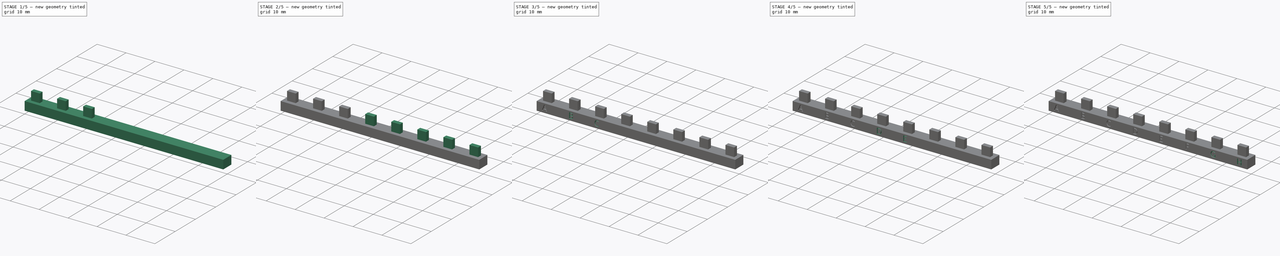
[diagram: build sequence overview — one tinted view per stage of 5, left to right]
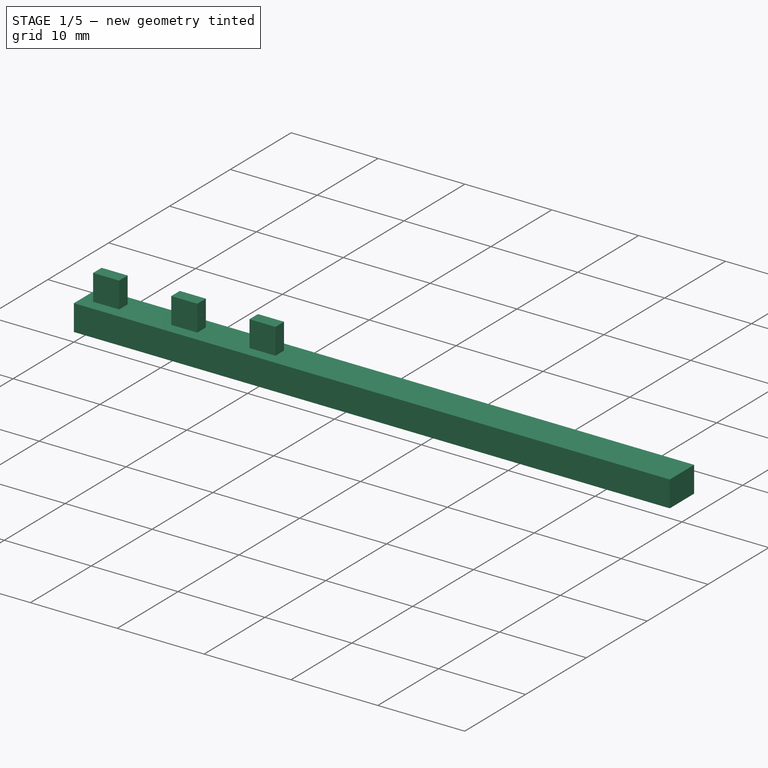
[diagram: stage 1 of 5 — iso view after this stage's code; geometry added in this stage tinted green]
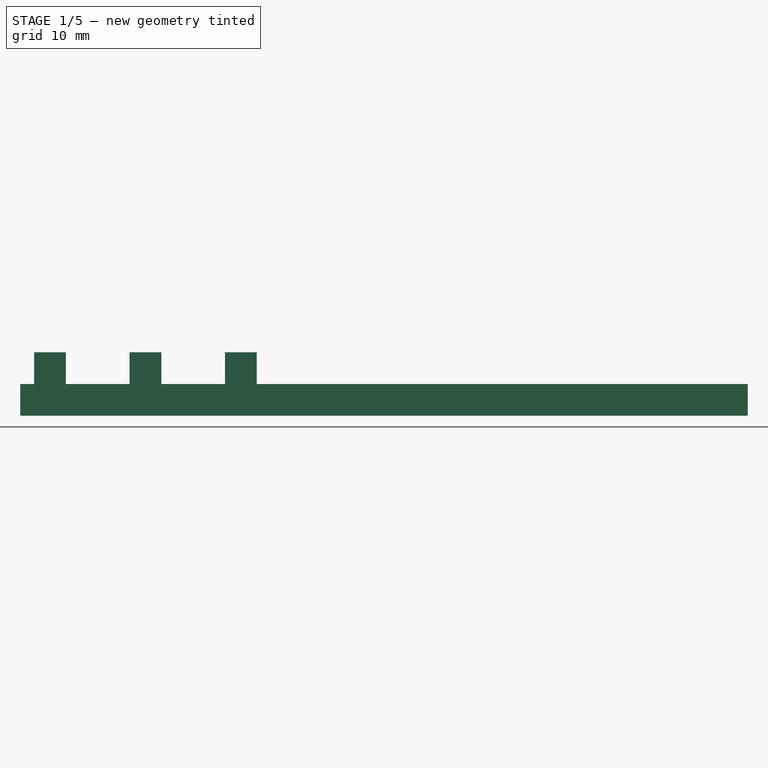
[diagram: stage 1 of 5 — front view after this stage's code; geometry added in this stage tinted green]
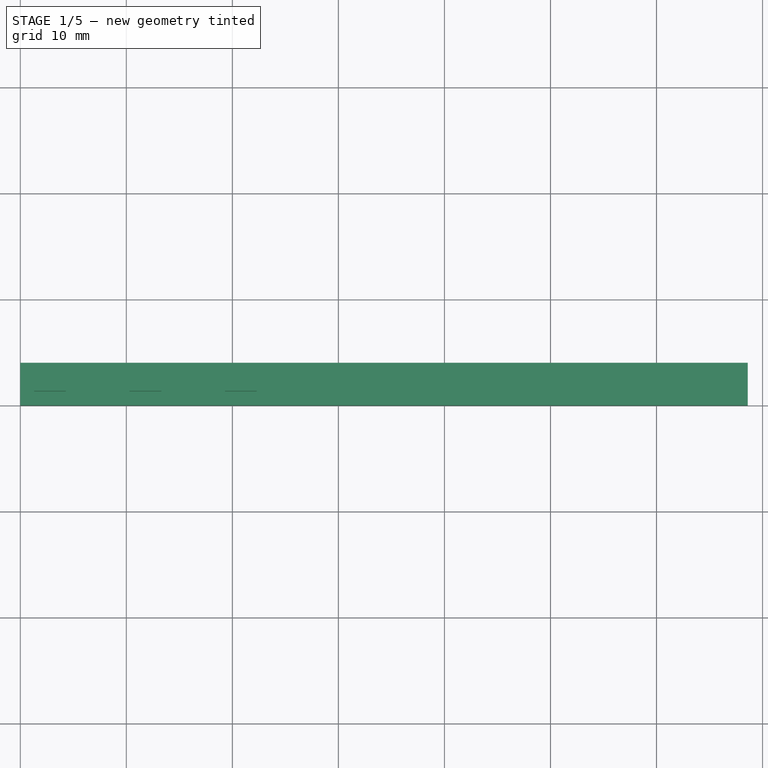
[diagram: stage 1 of 5 — top view after this stage's code; geometry added in this stage tinted green]
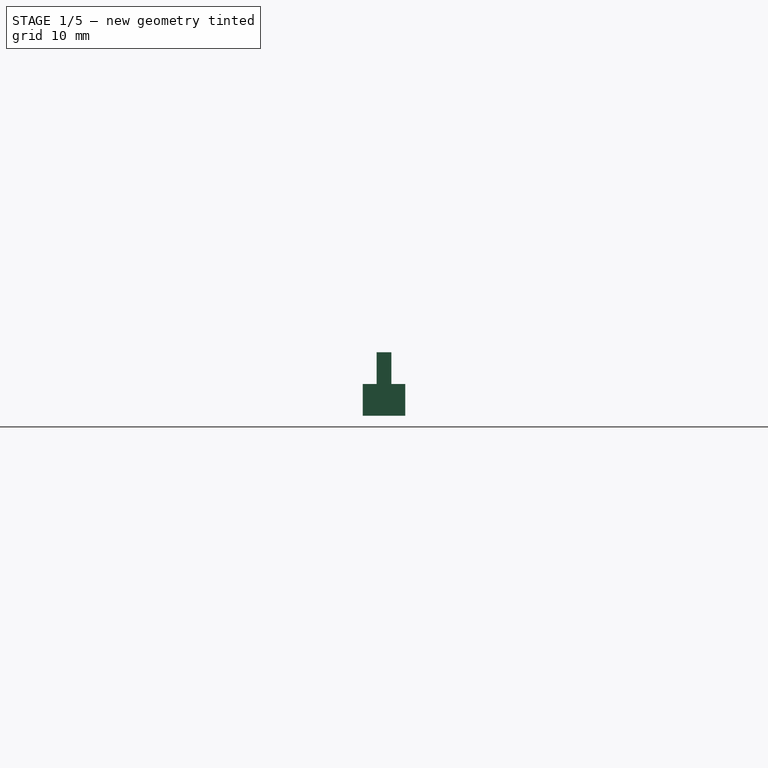
[diagram: stage 1 of 5 — right view after this stage's code; geometry added in this stage tinted green]
FCSTD DOCUMENT  (FreeCAD 0.19R14555 (Git shallow))
Label: ops.dicer_rect.lg_plug_3mm_letter_0.3mmtol
License: All rights reserved
LicenseURL: http://en.wikipedia.org/wiki/All_rights_reserved
objects: Sketcher::SketchObject×9, PartDesign::Pad×9, Part::Part2DObjectPython×8, Part::Extrusion×8, Part::Cut×8, PartDesign::Body×1
note: 52 computed .brp shape members not serialized (recipe doc carries the construction recipe); baked Part::Feature solids carry a one-line shape summary decoded from their .brp

FEATURE [Sketcher::SketchObject] Sketch
  FullyConstrained = true
  MapMode = 5
  Support = -> [XY_Plane]
  sketch-geometry (4):
    g0: LineSegment StartX=1.3 StartY=1.3 StartZ=0 EndX=4.3 EndY=1.3 EndZ=0
    g1: LineSegment StartX=4.3 StartY=1.3 StartZ=0 EndX=4.3 EndY=2.7 EndZ=0
    g2: LineSegment StartX=4.3 StartY=2.7 StartZ=0 EndX=1.3 EndY=2.7 EndZ=0
    g3: LineSegment StartX=1.3 StartY=2.7 StartZ=0 EndX=1.3 EndY=1.3 EndZ=0
  constraints (12):
    c: Coincident(g0,g1)
    c: Coincident(g1,g2)
    c: Coincident(g2,g3)
    c: Coincident(g3,g0)
    c: Horizontal(g0)
    c: Horizontal(g2)
    c: Vertical(g1)
    c: Vertical(g3)
    c: DistanceY(g0,g2) = 1.4
    c: DistanceX(g2,g1) = 3
    c: DistanceX(g-1,g0) = 1.3
    c: DistanceY(g-1,g0) = 1.3
FEATURE [Sketcher::SketchObject] Sketch001
  FullyConstrained = true
  MapMode = 5
  Support = -> [XY_Plane]
  sketch-geometry (4):
    g0: LineSegment StartX=10.3 StartY=1.3 StartZ=0 EndX=13.3 EndY=1.3 EndZ=0
    g1: LineSegment StartX=13.3 StartY=1.3 StartZ=0 EndX=13.3 EndY=2.7 EndZ=0
    g2: LineSegment StartX=13.3 StartY=2.7 StartZ=0 EndX=10.3 EndY=2.7 EndZ=0
    g3: LineSegment StartX=10.3 StartY=2.7 StartZ=0 EndX=10.3 EndY=1.3 EndZ=0
  constraints (12):
    c: Coincident(g0,g1)
    c: Coincident(g1,g2)
    c: Coincident(g2,g3)
    c: Coincident(g3,g0)
    c: Horizontal(g0)
    c: Horizontal(g2)
    c: Vertical(g1)
    c: Vertical(g3)
    c: DistanceX(g-1,g0) = 10.3
    c: DistanceX(g0,g0) = 3
    c: DistanceY(g0,g2) = 1.4
    c: DistanceY(g-1,g0) = 1.3
FEATURE [Sketcher::SketchObject] Sketch002
  FullyConstrained = true
  MapMode = 5
  Support = -> [XY_Plane]
  sketch-geometry (4):
    g0: LineSegment StartX=19.3 StartY=1.3 StartZ=0 EndX=22.3 EndY=1.3 EndZ=0
    g1: LineSegment StartX=22.3 StartY=1.3 StartZ=0 EndX=22.3 EndY=2.7 EndZ=0
    g2: LineSegment StartX=22.3 StartY=2.7 StartZ=0 EndX=19.3 EndY=2.7 EndZ=0
    g3: LineSegment StartX=19.3 StartY=2.7 StartZ=0 EndX=19.3 EndY=1.3 EndZ=0
  constraints (12):
    c: Coincident(g0,g1)
    c: Coincident(g1,g2)
    c: Coincident(g2,g3)
    c: Coincident(g3,g0)
    c: Horizontal(g0)
    c: Horizontal(g2)
    c: Vertical(g1)
    c: Vertical(g3)
    c: DistanceX(g-1,g0) = 19.3
    c: DistanceX(g0,g0) = 3
    c: DistanceY(g0,g2) = 1.4
    c: DistanceY(g-1,g0) = 1.3
FEATURE [Sketcher::SketchObject] Sketch003
  FullyConstrained = true
  MapMode = 5
  Support = -> [XY_Plane]
  sketch-geometry (4):
    g0: LineSegment StartX=28.3 StartY=1.3 StartZ=0 EndX=31.3 EndY=1.3 EndZ=0
    g1: LineSegment StartX=31.3 StartY=1.3 StartZ=0 EndX=31.3 EndY=2.7 EndZ=0
    g2: LineSegment StartX=31.3 StartY=2.7 StartZ=0 EndX=28.3 EndY=2.7 EndZ=0
    g3: LineSegment StartX=28.3 StartY=2.7 StartZ=0 EndX=28.3 EndY=1.3 EndZ=0
  constraints (12):
    c: Coincident(g0,g1)
    c: Coincident(g1,g2)
    c: Coincident(g2,g3)
    c: Coincident(g3,g0)
    c: Horizontal(g0)
    c: Horizontal(g2)
    c: Vertical(g1)
    c: Vertical(g3)
    c: DistanceX(g-1,g0) = 28.3
    c: DistanceX(g0,g0) = 3
    c: DistanceY(g0,g2) = 1.4
    c: DistanceY(g-1,g0) = 1.3
FEATURE [Sketcher::SketchObject] Sketch004
  FullyConstrained = true
  MapMode = 5
  Support = -> [XY_Plane]
  sketch-geometry (4):
    g0: LineSegment StartX=37.3 StartY=1.3 StartZ=0 EndX=40.3 EndY=1.3 EndZ=0
    g1: LineSegment StartX=40.3 StartY=1.3 StartZ=0 EndX=40.3 EndY=2.7 EndZ=0
    g2: LineSegment StartX=40.3 StartY=2.7 StartZ=0 EndX=37.3 EndY=2.7 EndZ=0
    g3: LineSegment StartX=37.3 StartY=2.7 StartZ=0 EndX=37.3 EndY=1.3 EndZ=0
  constraints (12):
    c: Coincident(g0,g1)
    c: Coincident(g1,g2)
    c: Coincident(g2,g3)
    c: Coincident(g3,g0)
    c: Horizontal(g0)
    c: Horizontal(g2)
    c: Vertical(g1)
    c: Vertical(g3)
    c: DistanceX(g-1,g0) = 37.3
    c: DistanceX(g0,g0) = 3
    c: DistanceY(g0,g1) = 1.4
    c: DistanceY(g-1,g0) = 1.3
FEATURE [Sketcher::SketchObject] Sketch005
  FullyConstrained = true
  MapMode = 5
  Support = -> [XY_Plane]
  sketch-geometry (4):
    g0: LineSegment StartX=46.3 StartY=1.3 StartZ=0 EndX=49.3 EndY=1.3 EndZ=0
    g1: LineSegment StartX=49.3 StartY=1.3 StartZ=0 EndX=49.3 EndY=2.7 EndZ=0
    g2: LineSegment StartX=49.3 StartY=2.7 StartZ=0 EndX=46.3 EndY=2.7 EndZ=0
    g3: LineSegment StartX=46.3 StartY=2.7 StartZ=0 EndX=46.3 EndY=1.3 EndZ=0
  constraints (12):
    c: Coincident(g0,g1)
    c: Coincident(g1,g2)
    c: Coincident(g2,g3)
    c: Coincident(g3,g0)
    c: Horizontal(g0)
    c: Horizontal(g2)
    c: Vertical(g1)
    c: Vertical(g3)
    c: DistanceX(g-1,g0) = 46.3
    c: DistanceX(g0,g0) = 3
    c: DistanceY(g0,g2) = 1.4
    c: DistanceY(g-1,g0) = 1.3
FEATURE [Sketcher::SketchObject] Sketch006
  FullyConstrained = true
  MapMode = 5
  Support = -> [XY_Plane]
  sketch-geometry (4):
    g0: LineSegment StartX=55.3 StartY=2.7 StartZ=0 EndX=58.3 EndY=2.7 EndZ=0
    g1: LineSegment StartX=58.3 StartY=2.7 StartZ=0 EndX=58.3 EndY=1.3 EndZ=0
    g2: LineSegment StartX=58.3 StartY=1.3 StartZ=0 EndX=55.3 EndY=1.3 EndZ=0
    g3: LineSegment StartX=55.3 StartY=1.3 StartZ=0 EndX=55.3 EndY=2.7 EndZ=0
  constraints (12):
    c: Coincident(g0,g1)
    c: Coincident(g1,g2)
    c: Coincident(g2,g3)
    c: Coincident(g3,g0)
    c: Horizontal(g0)
    c: Horizontal(g2)
    c: Vertical(g1)
    c: Vertical(g3)
    c: DistanceX(g-1,g2) = 55.3
    c: DistanceX(g2,g1) = 3
    c: DistanceY(g2,g0) = 1.4
    c: DistanceY(g-1,g2) = 1.3
FEATURE [Sketcher::SketchObject] Sketch007
  FullyConstrained = true
  MapMode = 5
  Support = -> [XY_Plane]
  sketch-geometry (4):
    g0: LineSegment StartX=64.3 StartY=1.3 StartZ=0 EndX=67.3 EndY=1.3 EndZ=0
    g1: LineSegment StartX=67.3 StartY=1.3 StartZ=0 EndX=67.3 EndY=2.7 EndZ=0
    g2: LineSegment StartX=67.3 StartY=2.7 StartZ=0 EndX=64.3 EndY=2.7 EndZ=0
    g3: LineSegment StartX=64.3 StartY=2.7 StartZ=0 EndX=64.3 EndY=1.3 EndZ=0
  constraints (12):
    c: Coincident(g0,g1)
    c: Coincident(g1,g2)
    c: Coincident(g2,g3)
    c: Coincident(g3,g0)
    c: Horizontal(g0)
    c: Horizontal(g2)
    c: Vertical(g1)
    c: Vertical(g3)
    c: DistanceX(g-1,g0) = 64.3
    c: DistanceY(g0,g2) = 1.4
    c: DistanceX(g0,g0) = 3
    c: DistanceY(g-1,g0) = 1.3
FEATURE [Sketcher::SketchObject] Sketch008
  FullyConstrained = true
  MapMode = 5
  Support = -> [XY_Plane]
  sketch-geometry (4):
    g0: LineSegment StartX=0 StartY=0 StartZ=0 EndX=68.6 EndY=0 EndZ=0
    g1: LineSegment StartX=68.6 StartY=0 StartZ=0 EndX=68.6 EndY=4 EndZ=0
    g2: LineSegment StartX=68.6 StartY=4 StartZ=0 EndX=0 EndY=4 EndZ=0
    g3: LineSegment StartX=0 StartY=4 StartZ=0 EndX=0 EndY=0 EndZ=0
  constraints (11):
    c: Coincident(g0,g1)
    c: Coincident(g1,g2)
    c: Coincident(g2,g3)
    c: Coincident(g3,g0)
    c: Horizontal(g0)
    c: Horizontal(g2)
    c: Vertical(g1)
    c: Vertical(g3)
    c: Coincident(g0,g-1)
    c: DistanceY(g0,g2) = 4
    c: DistanceX(g0,g0) = 68.6
FEATURE [PartDesign::Pad] Pad
  Direction = (1,1,1)
  Length = 3
  Length2 = 100
  Profile = -> Sketch008
  Reversed = true
  Type = 0
FEATURE [PartDesign::Pad] Pad001
  BaseFeature = -> Pad
  Direction = (1,1,1)
  Length = 3
  Length2 = 100
  Profile = -> Sketch
  Type = 0
FEATURE [PartDesign::Pad] Pad002
  BaseFeature = -> Pad001
  Direction = (1,1,1)
  Length = 3
  Length2 = 100
  Profile = -> Sketch001
  Type = 0
FEATURE [PartDesign::Pad] Pad003
  BaseFeature = -> Pad002
  Direction = (1,1,1)
  Length = 3
  Length2 = 100
  Profile = -> Sketch002
  Type = 0
FEATURE [PartDesign::Body] Body
  Group = -> [Sketch,Sketch001,Sketch002,Sketch003,Sketch004,Sketch005,Sketch006,Sketch007,Sketch008,Pad,Pad001,Pad002,Pad003,Pad004,Pad005,Pad006,Pad007,Pad008]
  Origin = -> Origin
  Tip = -> Pad008
FEATURE [Part::Part2DObjectPython] ShapeString  # Draft 2D object (typed FeaturePython)
  FontFile = <path>
  Placement = pos=(1.8,0,-2.4) rot=(1,0,0;1.5708rad)
  Size = 2.5
  String = A
  Tracking = 0
FEATURE [Part::Part2DObjectPython] ShapeString001  # Draft 2D object (typed FeaturePython)
  FontFile = <path>
  Placement = pos=(11,0,-2.4) rot=(1,0,0;1.5708rad)
  Size = 2.5
  String = B
  Tracking = 0
FEATURE [Part::Part2DObjectPython] ShapeString002  # Draft 2D object (typed FeaturePython)
  FontFile = <path>
  Placement = pos=(19.9,0,-2.4) rot=(1,0,0;1.5708rad)
  Size = 2.5
  String = C
  Tracking = 0
FEATURE [Part::Part2DObjectPython] ShapeString003  # Draft 2D object (typed FeaturePython)
  FontFile = <path>
  Placement = pos=(28.9,0,-2.4) rot=(1,0,0;1.5708rad)
  Size = 2.5
  String = D
  Tracking = 0
FEATURE [Part::Part2DObjectPython] ShapeString004  # Draft 2D object (typed FeaturePython)
  FontFile = <path>
  Placement = pos=(38,0,-2.4) rot=(1,0,0;1.5708rad)
  Size = 2.5
  String = E
  Tracking = 0
FEATURE [Part::Part2DObjectPython] ShapeString005  # Draft 2D object (typed FeaturePython)
  FontFile = <path>
  Placement = pos=(47.1,0,-2.4) rot=(1,0,0;1.5708rad)
  Size = 2.5
  String = F
  Tracking = 0
FEATURE [Part::Part2DObjectPython] ShapeString006  # Draft 2D object (typed FeaturePython)
  FontFile = <path>
  Placement = pos=(55.8,0,-2.4) rot=(1,0,0;1.5708rad)
  Size = 2.5
  String = G
  Tracking = 0
FEATURE [Part::Part2DObjectPython] ShapeString007  # Draft 2D object (typed FeaturePython)
  FontFile = <path>
  Placement = pos=(64.9,0,-2.4) rot=(1,0,0;1.5708rad)
  Size = 2.5
  String = H
  Tracking = 0
FEATURE [Part::Extrusion] Extrude
  Base = -> ShapeString
  Dir = (0,-1,2e-16)
  DirMode = 2
  FaceMakerClass = Part::FaceMakerBullseye
  LengthFwd = 0.5
  LengthRev = 0
  Reversed = true
  Solid = false
  Symmetric = false
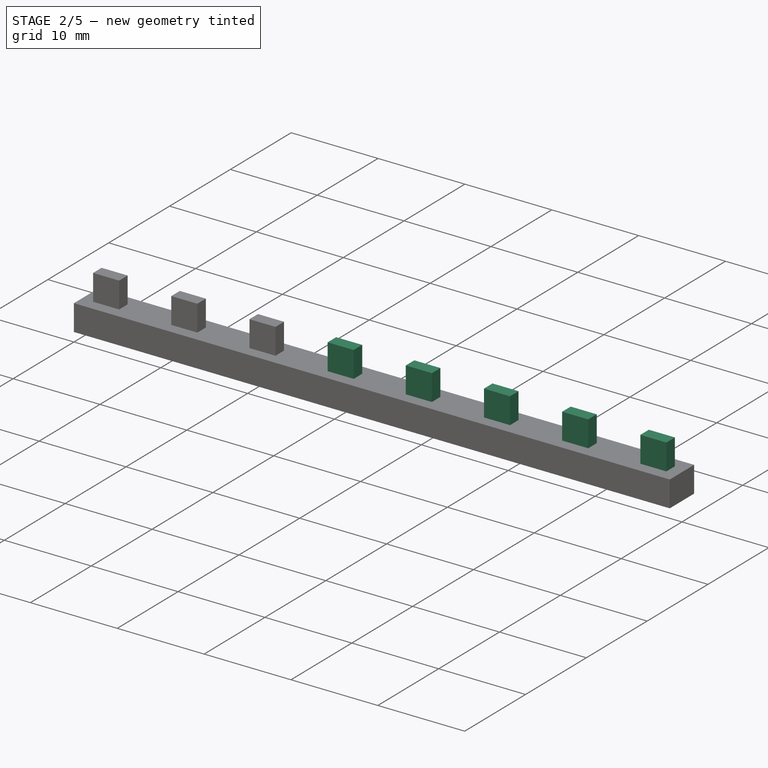
[diagram: stage 2 of 5 — iso view after this stage's code; geometry added in this stage tinted green]
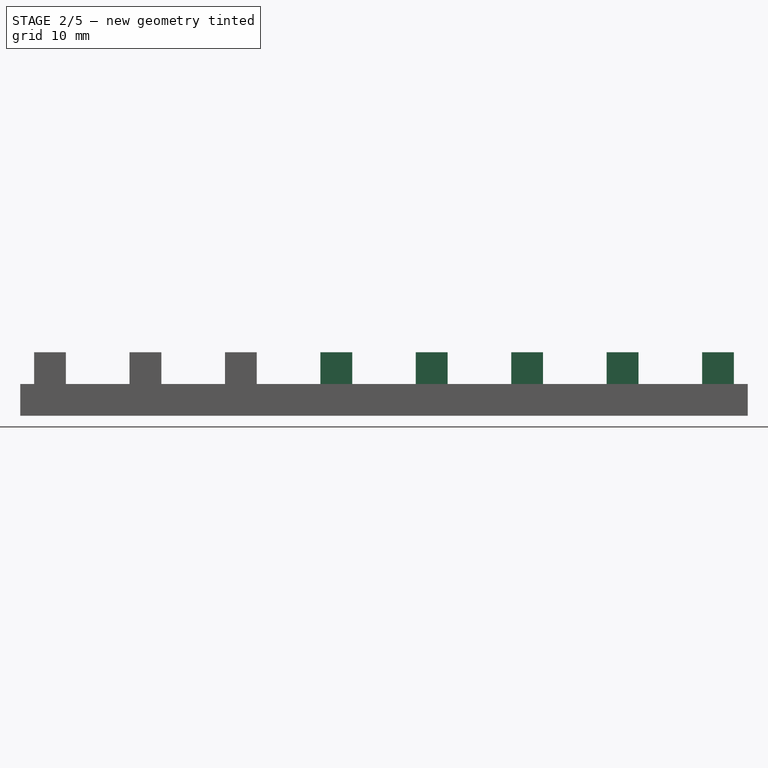
[diagram: stage 2 of 5 — front view after this stage's code; geometry added in this stage tinted green]
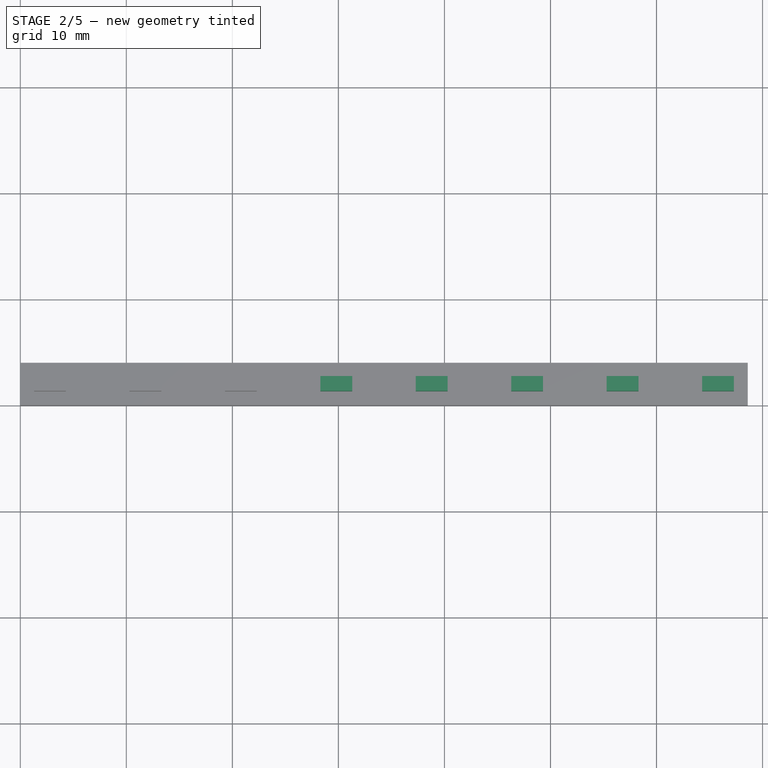
[diagram: stage 2 of 5 — top view after this stage's code; geometry added in this stage tinted green]
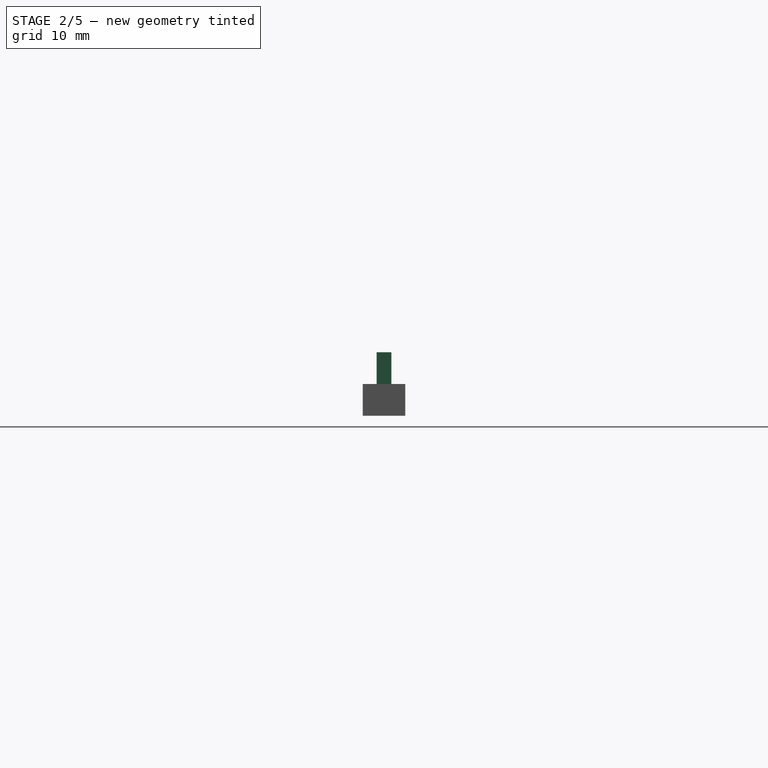
[diagram: stage 2 of 5 — right view after this stage's code; geometry added in this stage tinted green]
FEATURE [PartDesign::Pad] Pad004
  BaseFeature = -> Pad003
  Direction = (1,1,1)
  Length = 3
  Length2 = 100
  Profile = -> Sketch003
  Type = 0
FEATURE [PartDesign::Pad] Pad005
  BaseFeature = -> Pad004
  Direction = (1,1,1)
  Length = 3
  Length2 = 100
  Profile = -> Sketch004
  Type = 0
FEATURE [PartDesign::Pad] Pad006
  BaseFeature = -> Pad005
  Direction = (1,1,1)
  Length = 3
  Length2 = 100
  Profile = -> Sketch005
  Type = 0
FEATURE [PartDesign::Pad] Pad007
  BaseFeature = -> Pad006
  Direction = (1,1,1)
  Length = 3
  Length2 = 100
  Profile = -> Sketch006
  Type = 0
FEATURE [PartDesign::Pad] Pad008
  BaseFeature = -> Pad007
  Direction = (1,1,1)
  Length = 3
  Length2 = 100
  Profile = -> Sketch007
  Type = 0
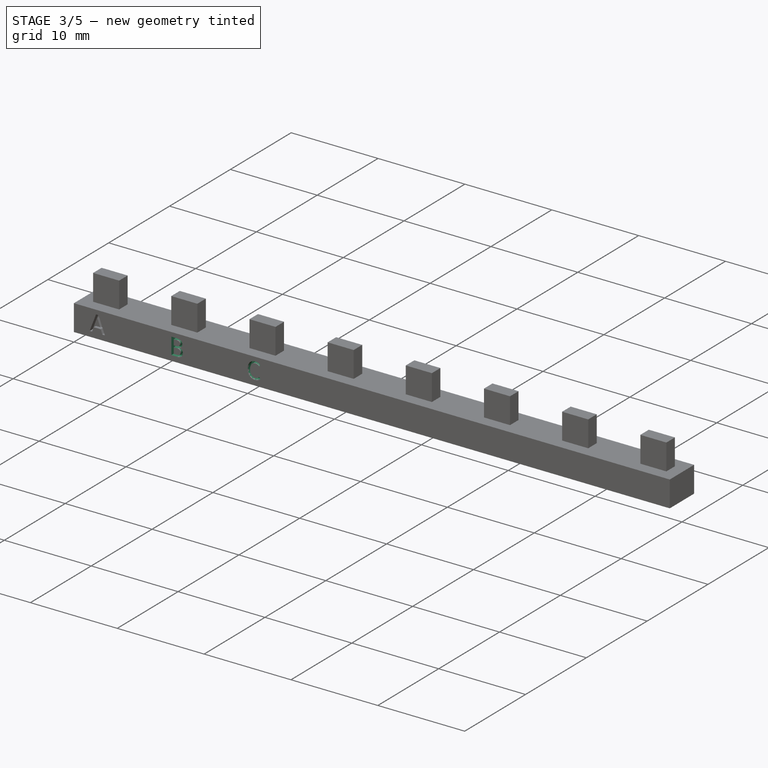
[diagram: stage 3 of 5 — iso view after this stage's code; geometry added in this stage tinted green]
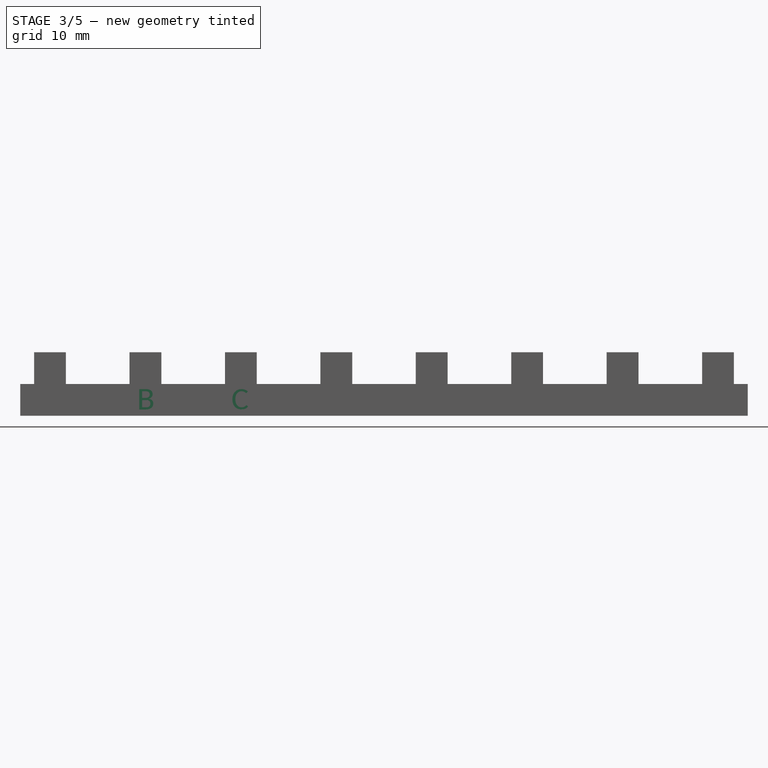
[diagram: stage 3 of 5 — front view after this stage's code; geometry added in this stage tinted green]
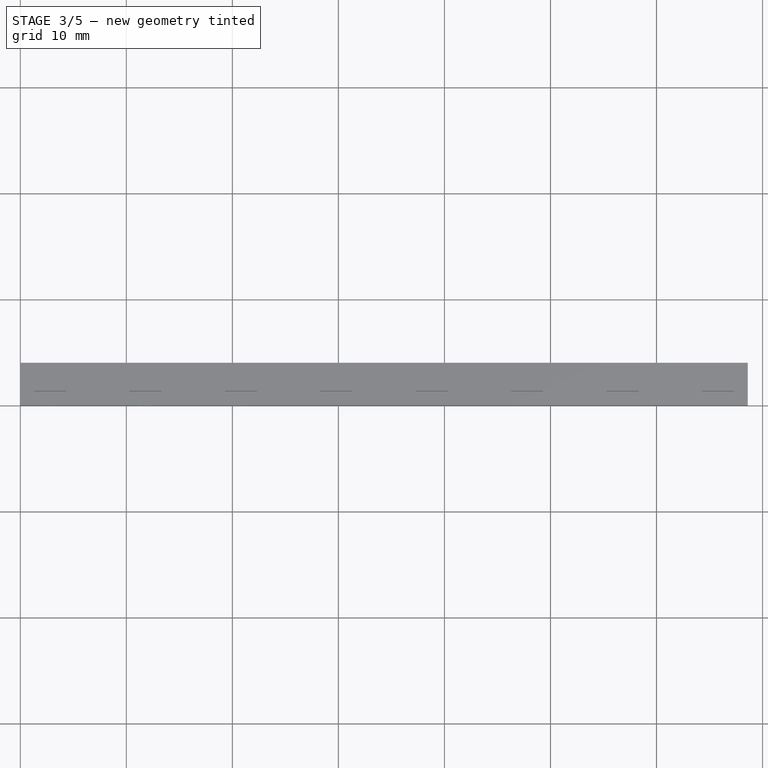
[diagram: stage 3 of 5 — top view after this stage's code; geometry added in this stage tinted green]
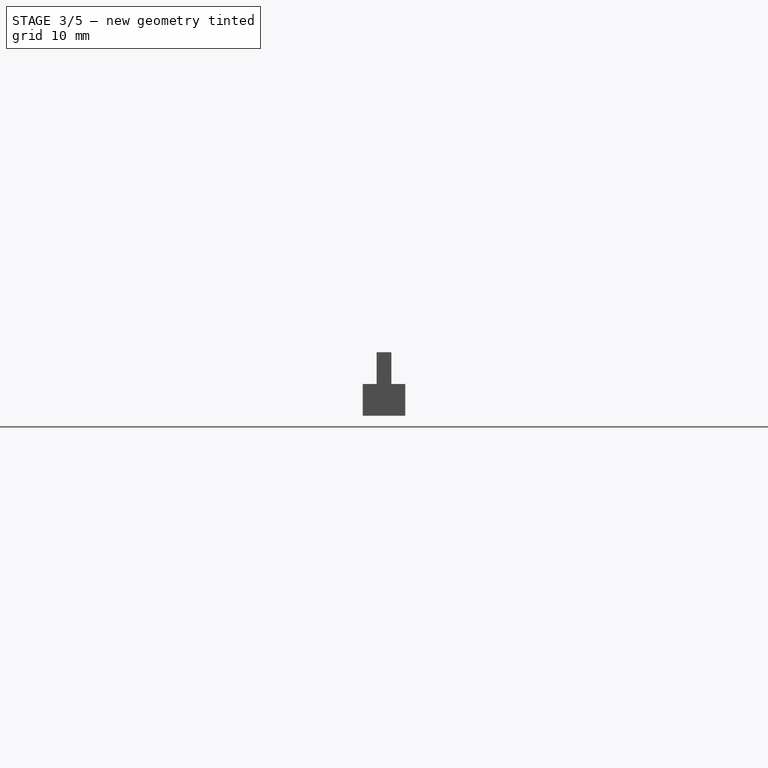
[diagram: stage 3 of 5 — right view after this stage's code; geometry added in this stage tinted green]
FEATURE [Part::Extrusion] Extrude001
  Base = -> ShapeString001
  Dir = (0,-1,2e-16)
  DirMode = 2
  FaceMakerClass = Part::FaceMakerBullseye
  LengthFwd = 0.5
  LengthRev = 0
  Reversed = true
  Solid = false
  Symmetric = false
FEATURE [Part::Extrusion] Extrude002
  Base = -> ShapeString002
  Dir = (0,-1,2e-16)
  DirMode = 2
  FaceMakerClass = Part::FaceMakerBullseye
  LengthFwd = 0.5
  LengthRev = 0
  Reversed = true
  Solid = false
  Symmetric = false
FEATURE [Part::Cut] Cut
  Base = -> Body
  Tool = -> Extrude
FEATURE [Part::Cut] Cut001
  Base = -> Cut
  Tool = -> Extrude001
FEATURE [Part::Cut] Cut002
  Base = -> Cut001
  Tool = -> Extrude002
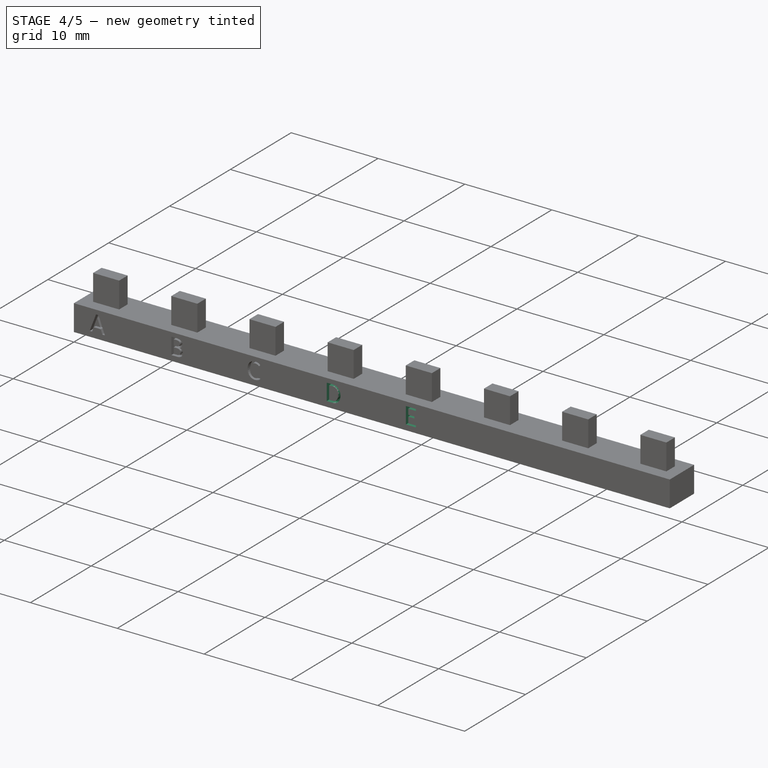
[diagram: stage 4 of 5 — iso view after this stage's code; geometry added in this stage tinted green]
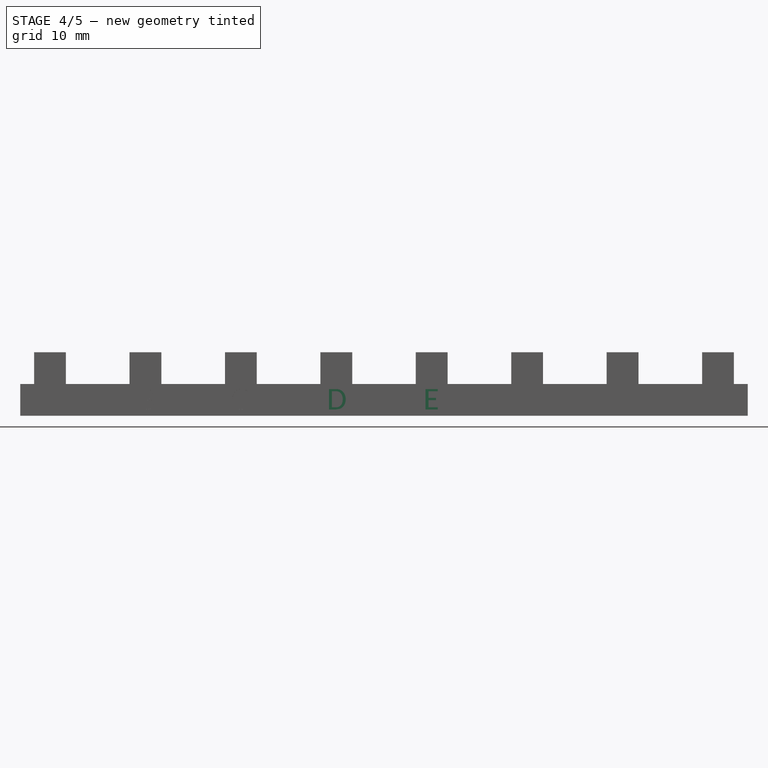
[diagram: stage 4 of 5 — front view after this stage's code; geometry added in this stage tinted green]
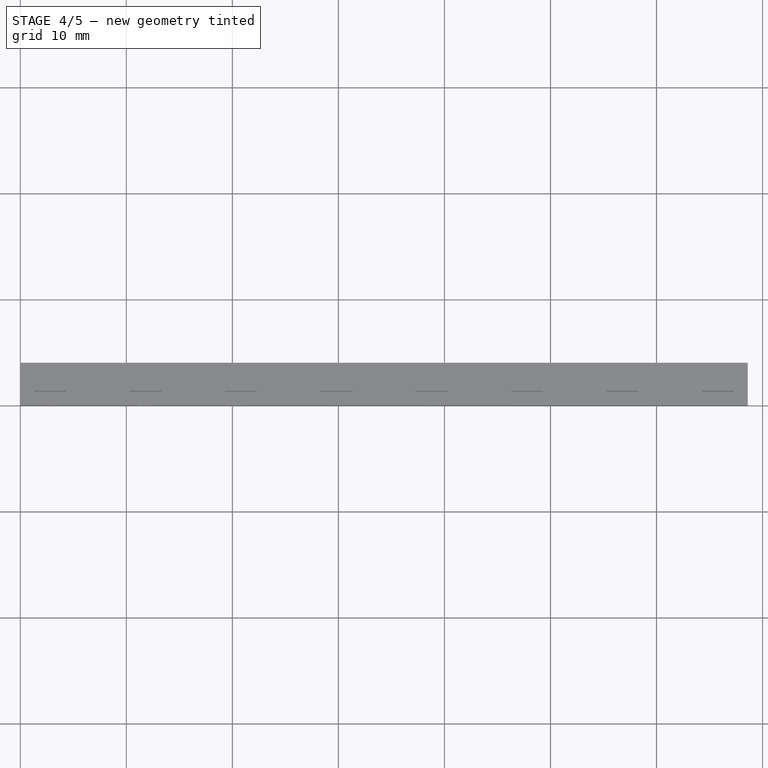
[diagram: stage 4 of 5 — top view after this stage's code; geometry added in this stage tinted green]
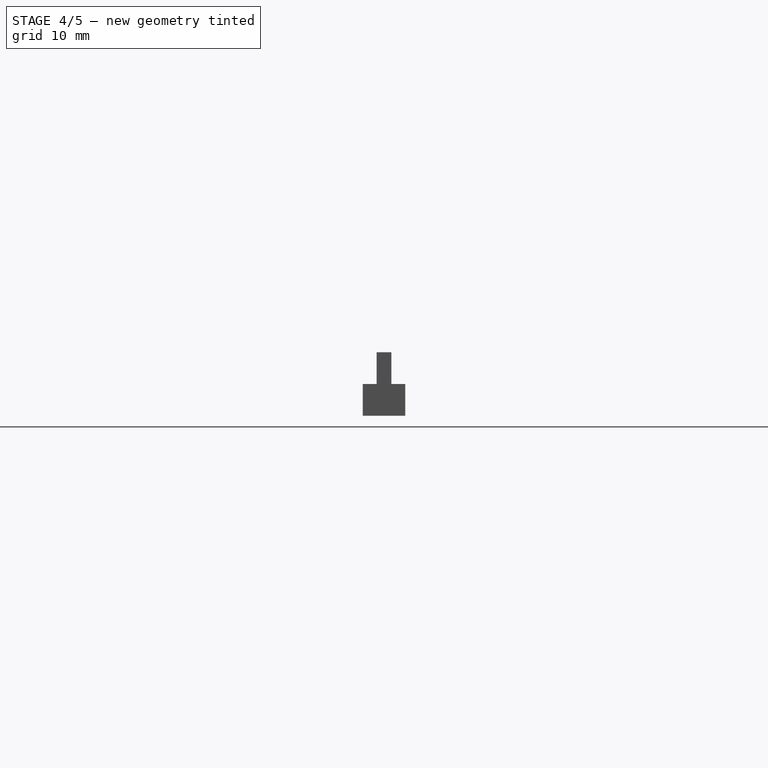
[diagram: stage 4 of 5 — right view after this stage's code; geometry added in this stage tinted green]
FEATURE [Part::Extrusion] Extrude003
  Base = -> ShapeString003
  Dir = (0,-1,2e-16)
  DirMode = 2
  FaceMakerClass = Part::FaceMakerBullseye
  LengthFwd = 0.5
  LengthRev = 0
  Reversed = true
  Solid = false
  Symmetric = false
FEATURE [Part::Extrusion] Extrude004
  Base = -> ShapeString004
  Dir = (0,-1,2e-16)
  DirMode = 2
  FaceMakerClass = Part::FaceMakerBullseye
  LengthFwd = 0.5
  LengthRev = 0
  Reversed = true
  Solid = false
  Symmetric = false
FEATURE [Part::Extrusion] Extrude005
  Base = -> ShapeString005
  Dir = (0,-1,2e-16)
  DirMode = 2
  FaceMakerClass = Part::FaceMakerBullseye
  LengthFwd = 0.5
  LengthRev = 0
  Reversed = true
  Solid = false
  Symmetric = false
FEATURE [Part::Cut] Cut003
  Base = -> Cut002
  Tool = -> Extrude003
FEATURE [Part::Cut] Cut004
  Base = -> Cut003
  Tool = -> Extrude004
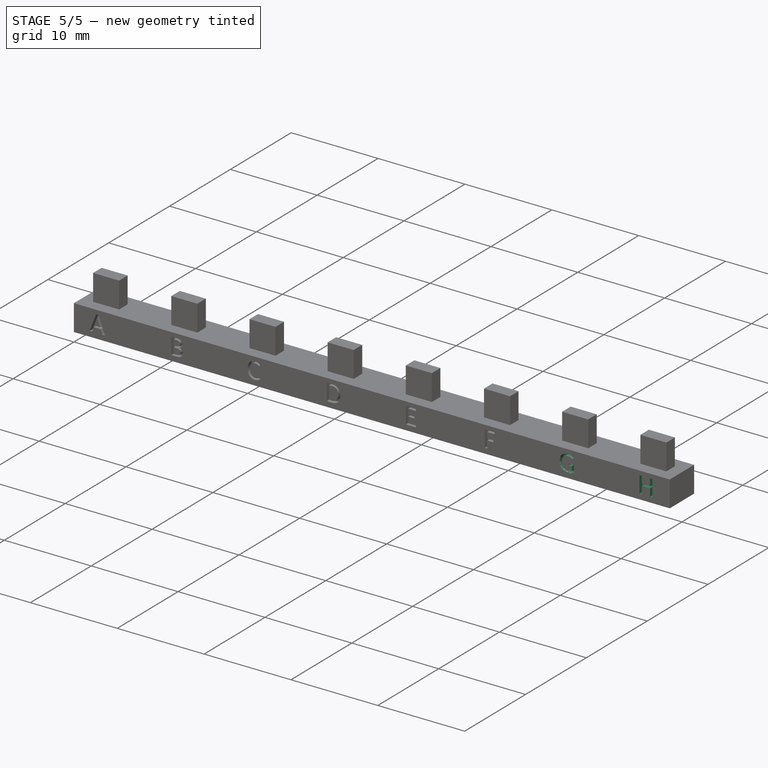
[diagram: stage 5 of 5 — iso view after this stage's code; geometry added in this stage tinted green]
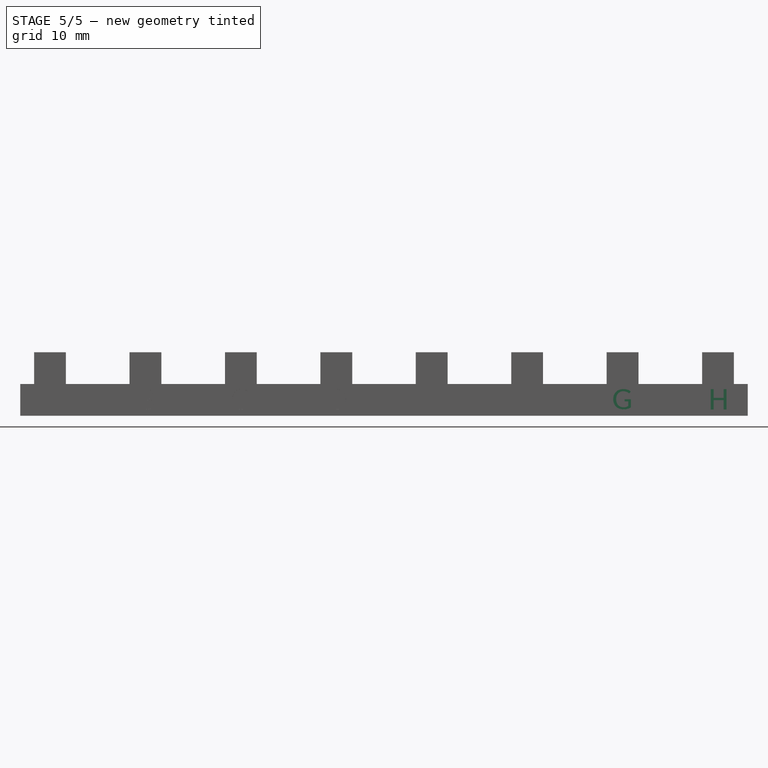
[diagram: stage 5 of 5 — front view after this stage's code; geometry added in this stage tinted green]
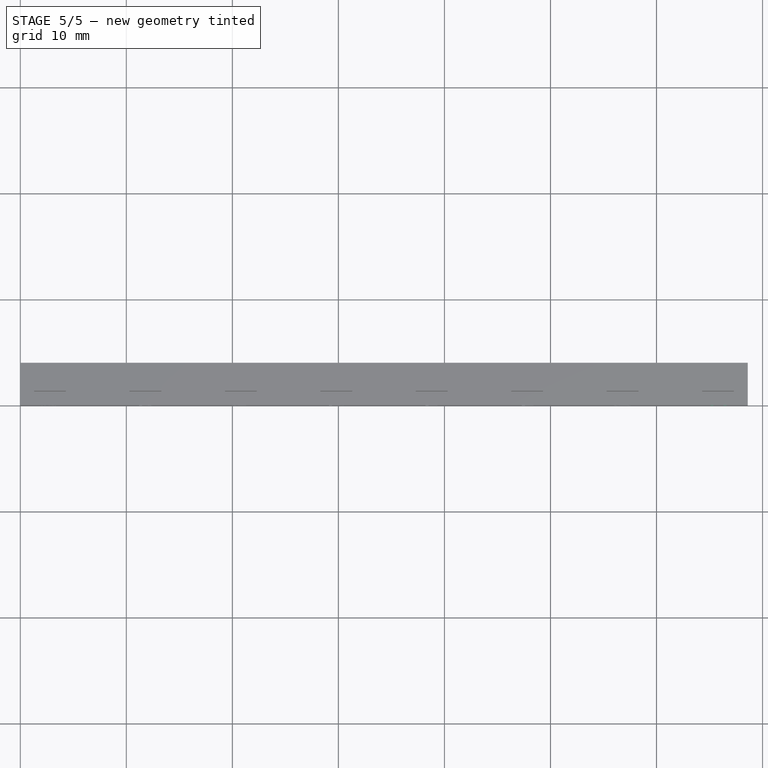
[diagram: stage 5 of 5 — top view after this stage's code; geometry added in this stage tinted green]
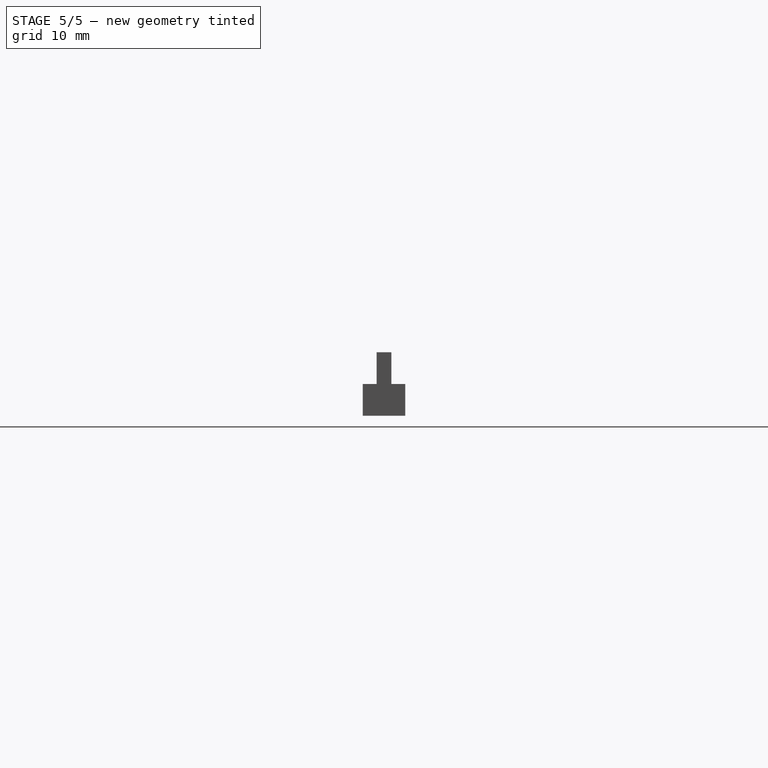
[diagram: stage 5 of 5 — right view after this stage's code; geometry added in this stage tinted green]
FEATURE [Part::Extrusion] Extrude006
  Base = -> ShapeString006
  Dir = (0,-1,2e-16)
  DirMode = 2
  FaceMakerClass = Part::FaceMakerBullseye
  LengthFwd = 0.5
  LengthRev = 0
  Reversed = true
  Solid = false
  Symmetric = false
FEATURE [Part::Extrusion] Extrude007
  Base = -> ShapeString007
  Dir = (0,-1,2e-16)
  DirMode = 2
  FaceMakerClass = Part::FaceMakerBullseye
  LengthFwd = 0.5
  LengthRev = 0
  Reversed = true
  Solid = false
  Symmetric = false
FEATURE [Part::Cut] Cut005
  Base = -> Cut004
  Tool = -> Extrude005
FEATURE [Part::Cut] Cut006
  Base = -> Cut005
  Tool = -> Extrude006
FEATURE [Part::Cut] Cut007
  Base = -> Cut006
  Tool = -> Extrude007
note: 8 file-system paths scrubbed to <path> (originals preserved in the JSON sidecar)
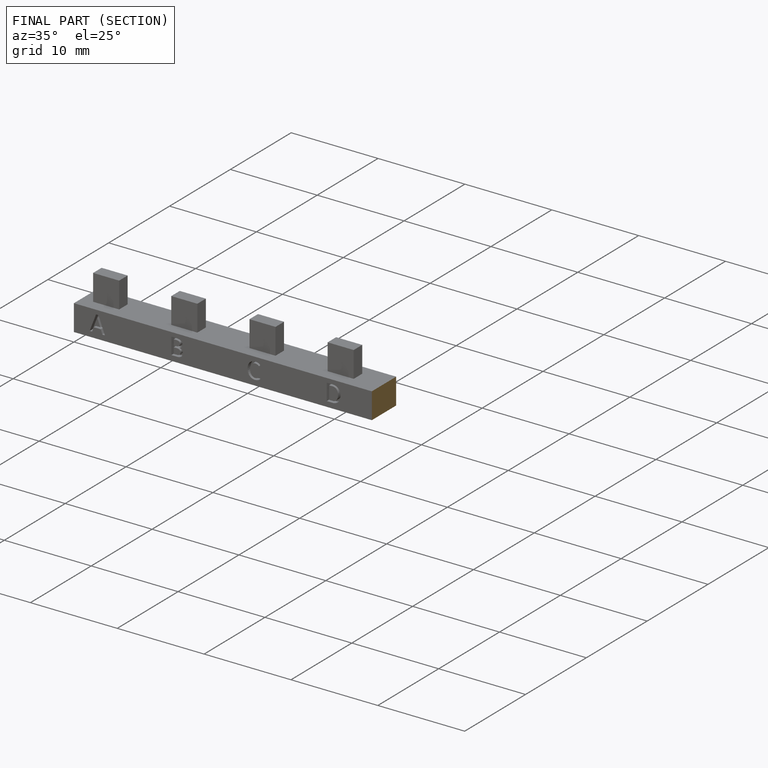
[diagram: finished part — half-section view (interior)]
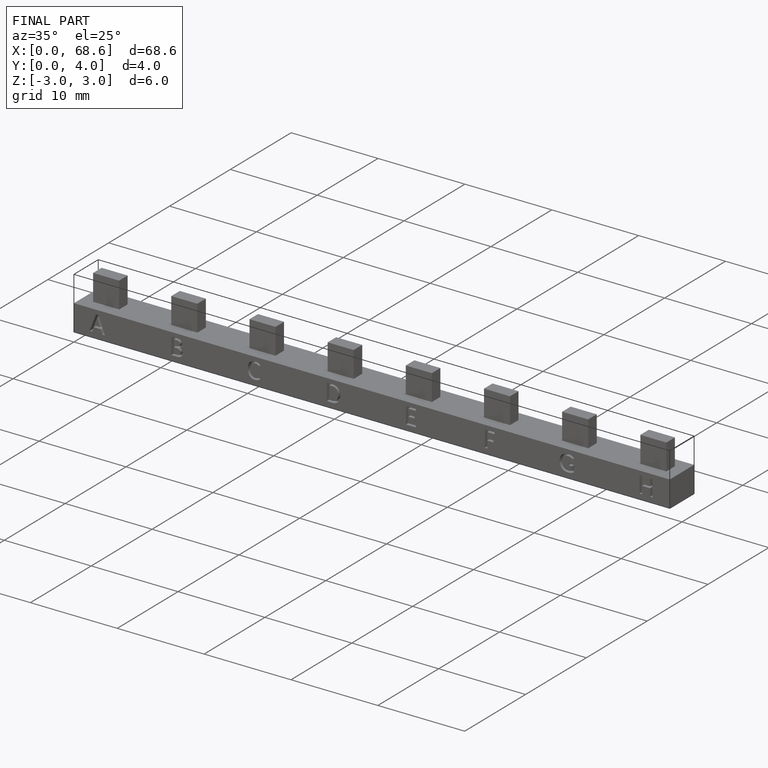
[diagram: finished part — iso view with bounding-box wireframe]
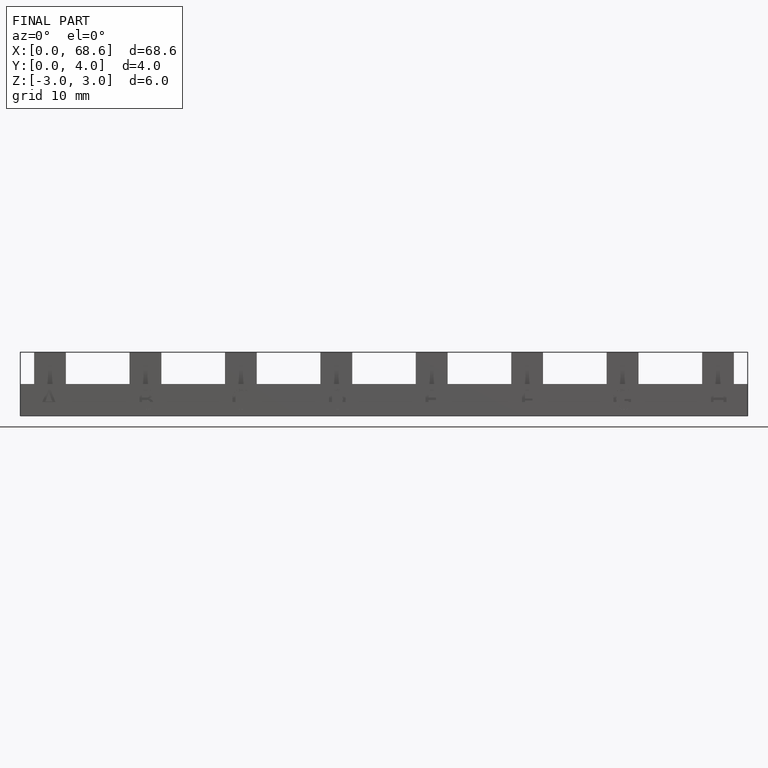
[diagram: finished part — front view with bounding-box wireframe]
